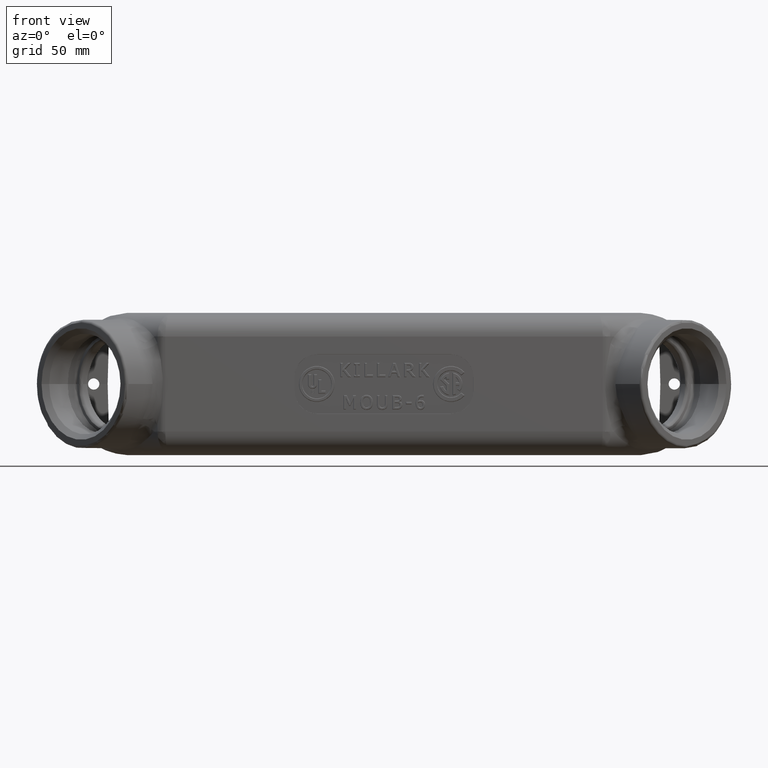
[diagram: clean part render]
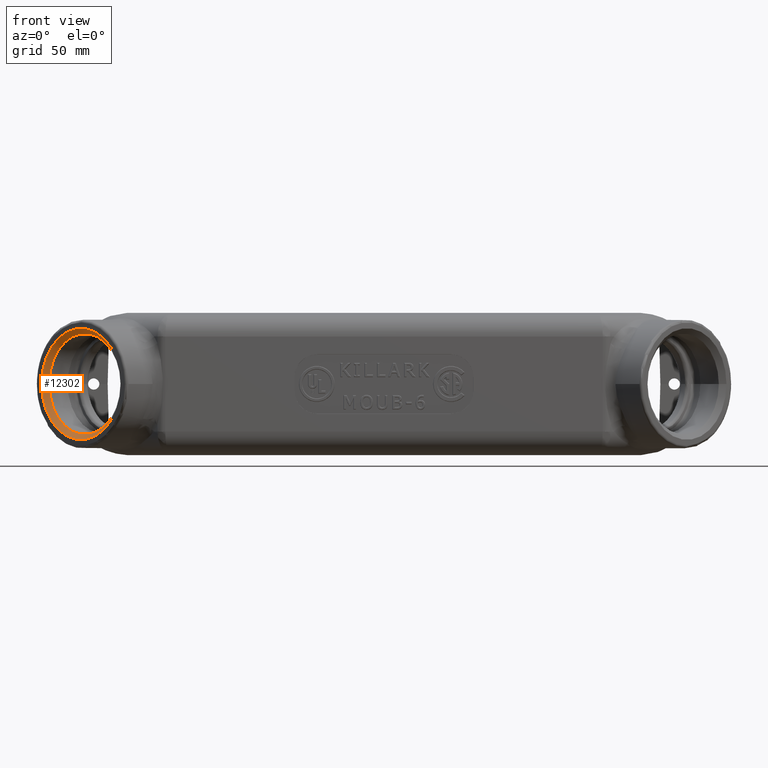
[diagram: same view with one face highlighted and labeled with its STEP entity id]
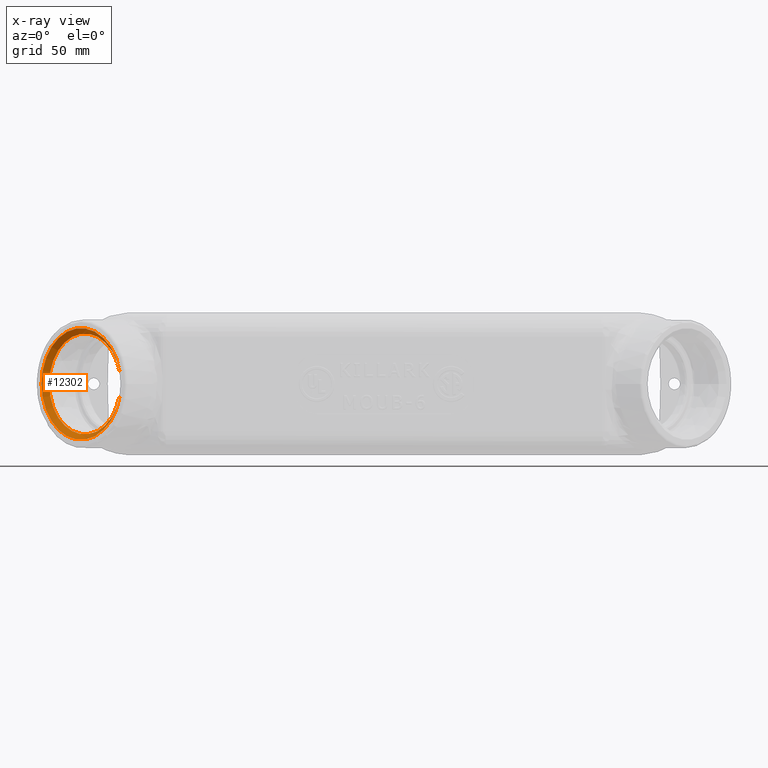
[diagram: x-ray of the same camera — body ghosted, the highlighted face saturated]
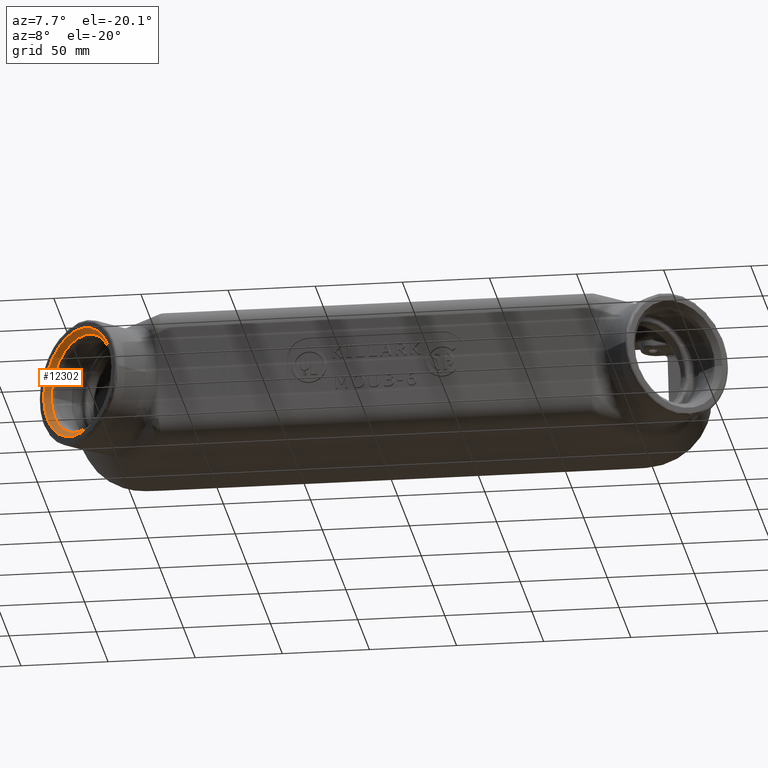
[diagram: same view with one face highlighted and labeled with its STEP entity id]
A machine part, front view. The second image highlights one B-rep face of the part: STEP entity #12302.
The next image is the same camera in x-ray: the body ghosted, the highlighted face saturated — about 0% of this face is hidden behind the body in this view.
A second angle (auxiliary view) of the same face is appended — the face is thin or edge-on in the first view.
In plain terms, the highlighted conical surface has half-angle 45 deg.
Its self-contained STEP definition (entity closure, byte-faithful):
#865=CONICAL_SURFACE('',#13251,1.1895,0.785398163397444);
#1651=FACE_OUTER_BOUND('',#2420,.T.);
#2420=EDGE_LOOP('',(#10335,#10336,#10337,#10338,#10339,#10340));
#3423=LINE('',#26045,#4313);
#4313=VECTOR('',#15316,1.1895);
#4714=CIRCLE('',#12752,1.25);
#4715=CIRCLE('',#12753,1.25);
#4897=CIRCLE('',#13211,1.129);
#4898=CIRCLE('',#13212,1.129);
#5116=VERTEX_POINT('',#17609);
#5117=VERTEX_POINT('',#17610);
#5807=VERTEX_POINT('',#25779);
#5808=VERTEX_POINT('',#25780);
#6336=EDGE_CURVE('',#5116,#5117,#4714,.T.);
#6338=EDGE_CURVE('',#5117,#5116,#4715,.T.);
#7370=EDGE_CURVE('',#5807,#5808,#4897,.T.);
#7371=EDGE_CURVE('',#5808,#5807,#4898,.T.);
#7425=EDGE_CURVE('',#5117,#5808,#3423,.T.);
#10335=ORIENTED_EDGE('',*,*,#6336,.F.);
#10336=ORIENTED_EDGE('',*,*,#6338,.F.);
#10337=ORIENTED_EDGE('',*,*,#7425,.T.);
#10338=ORIENTED_EDGE('',*,*,#7371,.T.);
#10339=ORIENTED_EDGE('',*,*,#7370,.T.);
#10340=ORIENTED_EDGE('',*,*,#7425,.F.);
#12302=ADVANCED_FACE('',(#1651),#865,.F.);
#12752=AXIS2_PLACEMENT_3D('',#17611,#13845,#13846);
#12753=AXIS2_PLACEMENT_3D('',#17613,#13848,#13849);
#13211=AXIS2_PLACEMENT_3D('',#25781,#15206,#15207);
#13212=AXIS2_PLACEMENT_3D('',#25782,#15208,#15209);
#13251=AXIS2_PLACEMENT_3D('',#26044,#15314,#15315);
#13845=DIRECTION('center_axis',(0.707106781186547,0.707106781186548,-1.03428456956164E-16));
#13846=DIRECTION('ref_axis',(0.707106781186548,-0.707106781186547,0.));
#13848=DIRECTION('center_axis',(0.707106781186547,0.707106781186548,-1.03428456956164E-16));
#13849=DIRECTION('ref_axis',(0.707106781186548,-0.707106781186547,0.));
#15206=DIRECTION('center_axis',(0.707106781186547,0.707106781186548,0.));
#15207=DIRECTION('ref_axis',(0.707106781186548,-0.707106781186547,0.));
#15208=DIRECTION('center_axis',(0.707106781186547,0.707106781186548,0.));
#15209=DIRECTION('ref_axis',(0.707106781186548,-0.707106781186547,0.));
#15314=DIRECTION('center_axis',(-0.707106781186547,-0.707106781186548,0.));
#15315=DIRECTION('ref_axis',(0.707106781186548,-0.707106781186547,0.));
#15316=DIRECTION('',(1.,4.63001728056087E-15,-8.65956056235489E-17));
#17609=CARTESIAN_POINT('',(-5.8998654403271,-2.233098122046,0.));
#17610=CARTESIAN_POINT('',(-7.66763239329347,-0.465331169079632,1.53080849893419E-16));
#17611=CARTESIAN_POINT('Origin',(-6.78374891681028,-1.34921464556281,0.));
#17613=CARTESIAN_POINT('Origin',(-6.78374891681028,-1.34921464556281,0.));
#25779=CARTESIAN_POINT('',(-5.8998654403271,-2.06197828099886,0.));
#25780=CARTESIAN_POINT('',(-7.49651255224633,-0.465331169079631,1.38262623623736E-16));
#25781=CARTESIAN_POINT('Origin',(-6.69818899628671,-1.26365472503924,0.));
#25782=CARTESIAN_POINT('Origin',(-6.69818899628671,-1.26365472503924,0.));
#26044=CARTESIAN_POINT('Origin',(-6.7409689565485,-1.30643468530103,0.));
#26045=CARTESIAN_POINT('',(-7.5820724727699,-0.465331169079631,1.45671736758578E-16));